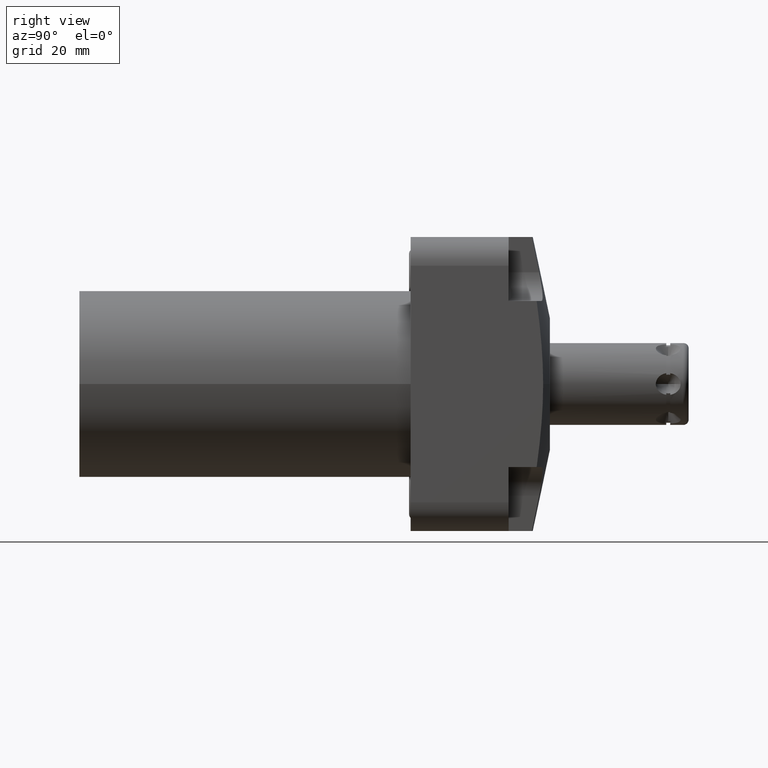
[diagram: clean part render]
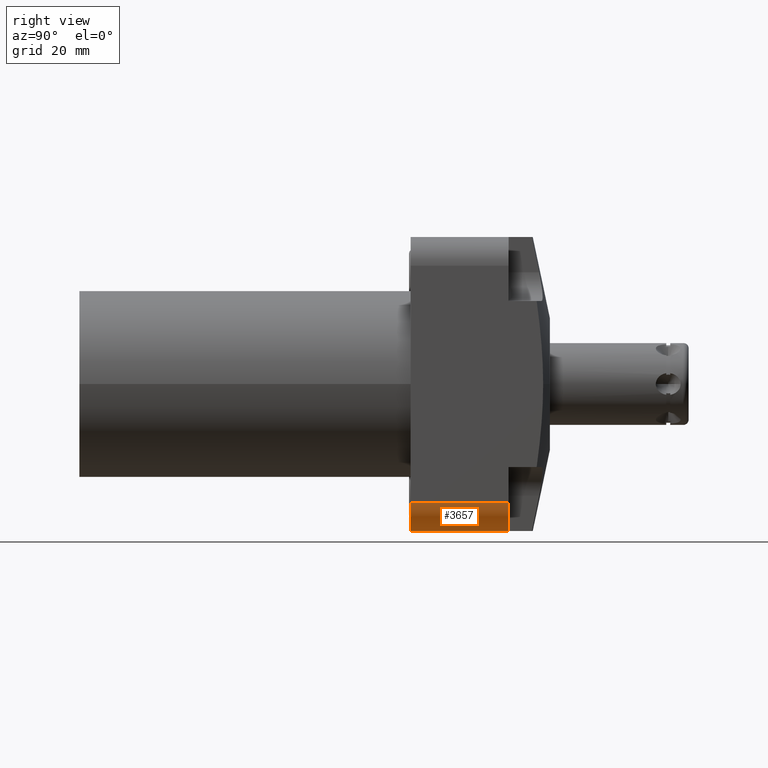
[diagram: same view with one face highlighted and labeled with its STEP entity id]
A machine part, right view. The second image highlights one B-rep face of the part: STEP entity #3657.
In plain terms, the highlighted cylindrical surface (edge-blend (fillet) strip) has radius 5.563 mm, axis along (0, -1, 0).
Its self-contained STEP definition (entity closure, byte-faithful):
#329=CARTESIAN_POINT('',(1.3436E1,0.E0,-2.2936E1));
#330=DIRECTION('',(0.E0,-1.E0,0.E0));
#331=DIRECTION('',(1.117607215154E-14,0.E0,-1.E0));
#332=AXIS2_PLACEMENT_3D('',#329,#330,#331);
#528=CARTESIAN_POINT('',(1.3436E1,1.8999E1,-2.2936E1));
#529=DIRECTION('',(0.E0,-1.E0,0.E0));
#530=DIRECTION('',(0.E0,0.E0,-1.E0));
#531=AXIS2_PLACEMENT_3D('',#528,#529,#530);
#2136=DIRECTION('',(0.E0,-1.E0,0.E0));
#2137=VECTOR('',#2136,1.8999E1);
#2138=CARTESIAN_POINT('',(1.8999E1,1.8999E1,-2.2936E1));
#2139=LINE('',#2138,#2137);
#2451=DIRECTION('',(0.E0,-1.E0,0.E0));
#2452=VECTOR('',#2451,1.8999E1);
#2453=CARTESIAN_POINT('',(1.3436E1,1.8999E1,-2.8499E1));
#2454=LINE('',#2453,#2452);
#2990=CARTESIAN_POINT('',(1.3436E1,1.8999E1,-2.8499E1));
#2992=VERTEX_POINT('',#2990);
#3168=CARTESIAN_POINT('',(1.8999E1,1.8999E1,-2.2936E1));
#3169=VERTEX_POINT('',#3168);
#3170=CARTESIAN_POINT('',(1.3436E1,0.E0,-2.8499E1));
#3171=CARTESIAN_POINT('',(1.8999E1,0.E0,-2.2936E1));
#3172=VERTEX_POINT('',#3170);
#3173=VERTEX_POINT('',#3171);
#3643=CARTESIAN_POINT('',(1.3436E1,2.717980752697E1,-2.2936E1));
#3644=DIRECTION('',(0.E0,-1.E0,0.E0));
#3645=DIRECTION('',(0.E0,0.E0,-1.E0));
#3646=AXIS2_PLACEMENT_3D('',#3643,#3644,#3645);
#3647=CYLINDRICAL_SURFACE('',#3646,5.563E0);
#3649=ORIENTED_EDGE('',*,*,#3648,.F.);
#3651=ORIENTED_EDGE('',*,*,#3650,.T.);
#3652=ORIENTED_EDGE('',*,*,#3547,.T.);
#3654=ORIENTED_EDGE('',*,*,#3653,.F.);
#3655=EDGE_LOOP('',(#3649,#3651,#3652,#3654));
#3656=FACE_OUTER_BOUND('',#3655,.F.);
#3657=ADVANCED_FACE('',(#3656),#3647,.T.);
#333=CIRCLE('',#332,5.563E0);
#532=CIRCLE('',#531,5.563E0);
#3547=EDGE_CURVE('',#3172,#3173,#333,.T.);
#3648=EDGE_CURVE('',#2992,#3169,#532,.T.);
#3650=EDGE_CURVE('',#2992,#3172,#2454,.T.);
#3653=EDGE_CURVE('',#3169,#3173,#2139,.T.);